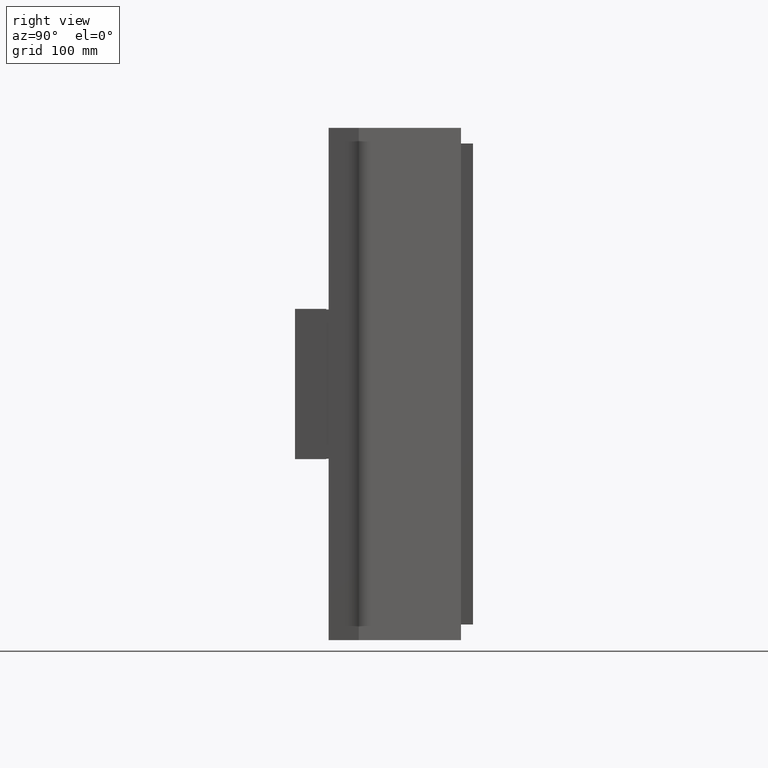
[diagram: clean part render]
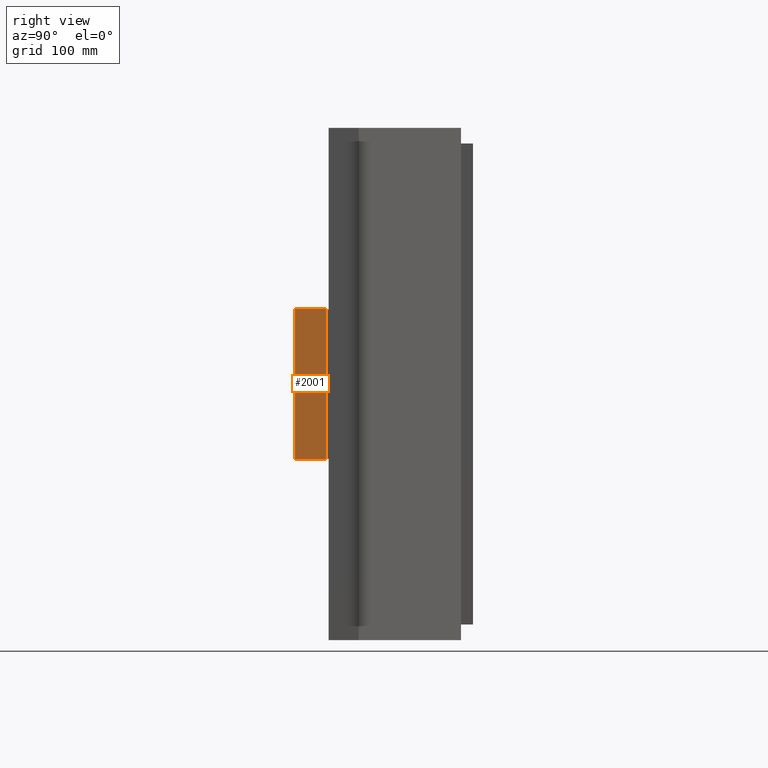
[diagram: same view with one face highlighted and labeled with its STEP entity id]
A machine part, right view. The second image highlights one B-rep face of the part: STEP entity #2001.
In plain terms, the highlighted planar face has unit normal (-1, 0, 0).
Its self-contained STEP definition (entity closure, byte-faithful):
#157 = PLANE ( 'NONE',  #874 ) ;
#243 = EDGE_LOOP ( 'NONE', ( #1093, #1224, #2874, #2321 ) ) ;
#388 = CARTESIAN_POINT ( 'NONE',  ( 20.88361753920456500, -111.9999999999997400, -62.50000000000002800 ) ) ;
#427 = CARTESIAN_POINT ( 'NONE',  ( 20.88361753920459000, -111.9999999999997400, 62.49999999999997200 ) ) ;
#459 = VERTEX_POINT ( 'NONE', #555 ) ;
#555 = CARTESIAN_POINT ( 'NONE',  ( 20.88361753920459000, -137.9999999999997700, 62.49999999999997200 ) ) ;
#682 = LINE ( 'NONE', #2345, #1293 ) ;
#810 = VECTOR ( 'NONE', #2055, 1000.000000000000000 ) ;
#874 = AXIS2_PLACEMENT_3D ( 'NONE', #388, #2648, #2162 ) ;
#937 = EDGE_CURVE ( 'NONE', #2814, #459, #1269, .T. ) ;
#1093 = ORIENTED_EDGE ( 'NONE', *, *, #2774, .T. ) ;
#1124 = VECTOR ( 'NONE', #1914, 1000.000000000000000 ) ;
#1224 = ORIENTED_EDGE ( 'NONE', *, *, #2487, .F. ) ;
#1269 = LINE ( 'NONE', #427, #1124 ) ;
#1293 = VECTOR ( 'NONE', #2110, 1000.000000000000000 ) ;
#1348 = CARTESIAN_POINT ( 'NONE',  ( 20.88361753920456500, -111.9999999999997400, -62.50000000000002800 ) ) ;
#1401 = CARTESIAN_POINT ( 'NONE',  ( 20.88361753920456500, -137.9999999999997700, -62.50000000000002800 ) ) ;
#1689 = EDGE_CURVE ( 'NONE', #2814, #2260, #682, .T. ) ;
#1914 = DIRECTION ( 'NONE',  ( -0.0000000000000000000, -1.000000000000000000, -0.0000000000000000000 ) ) ;
#1956 = LINE ( 'NONE', #2392, #2863 ) ;
#2001 = ADVANCED_FACE ( 'NONE', ( #2509 ), #157, .F. ) ;
#2055 = DIRECTION ( 'NONE',  ( -1.110223024625156500E-016, -0.0000000000000000000, -1.000000000000000000 ) ) ;
#2110 = DIRECTION ( 'NONE',  ( -1.110223024625156500E-016, -0.0000000000000000000, -1.000000000000000000 ) ) ;
#2153 = CARTESIAN_POINT ( 'NONE',  ( 20.88361753920459000, -111.9999999999997400, 62.49999999999997200 ) ) ;
#2162 = DIRECTION ( 'NONE',  ( 1.110223024625156500E-016, 0.0000000000000000000, 1.000000000000000000 ) ) ;
#2260 = VERTEX_POINT ( 'NONE', #1348 ) ;
#2321 = ORIENTED_EDGE ( 'NONE', *, *, #937, .T. ) ;
#2345 = CARTESIAN_POINT ( 'NONE',  ( 20.88361753920456500, -111.9999999999997400, -62.50000000000002800 ) ) ;
#2392 = CARTESIAN_POINT ( 'NONE',  ( 20.88361753920456500, -111.9999999999997400, -62.50000000000002800 ) ) ;
#2487 = EDGE_CURVE ( 'NONE', #2260, #2722, #1956, .T. ) ;
#2509 = FACE_OUTER_BOUND ( 'NONE', #243, .T. ) ;
#2608 = DIRECTION ( 'NONE',  ( -0.0000000000000000000, -1.000000000000000000, -0.0000000000000000000 ) ) ;
#2646 = CARTESIAN_POINT ( 'NONE',  ( 20.88361753920456500, -137.9999999999997700, -62.50000000000002800 ) ) ;
#2648 = DIRECTION ( 'NONE',  ( -1.000000000000000000, 0.0000000000000000000, 1.110223024625156500E-016 ) ) ;
#2677 = LINE ( 'NONE', #2646, #810 ) ;
#2722 = VERTEX_POINT ( 'NONE', #1401 ) ;
#2774 = EDGE_CURVE ( 'NONE', #459, #2722, #2677, .T. ) ;
#2814 = VERTEX_POINT ( 'NONE', #2153 ) ;
#2863 = VECTOR ( 'NONE', #2608, 1000.000000000000000 ) ;
#2874 = ORIENTED_EDGE ( 'NONE', *, *, #1689, .F. ) ;